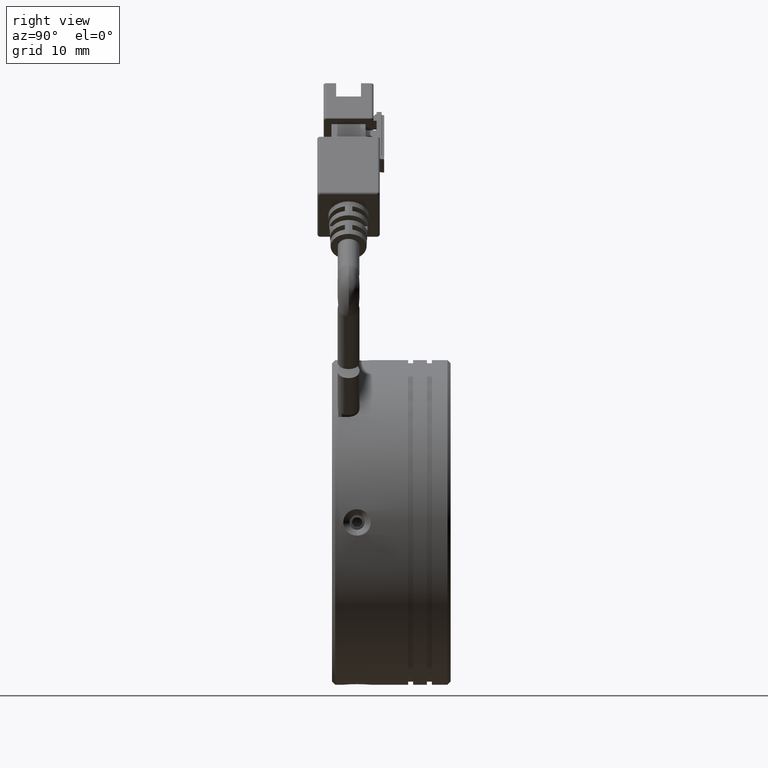
[diagram: clean part render]
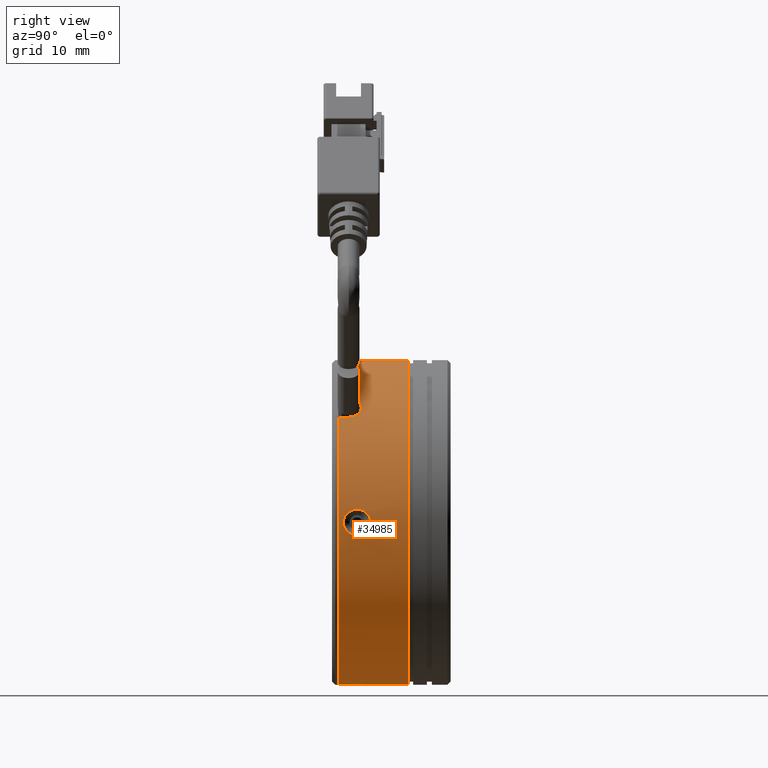
[diagram: same view with one face highlighted and labeled with its STEP entity id]
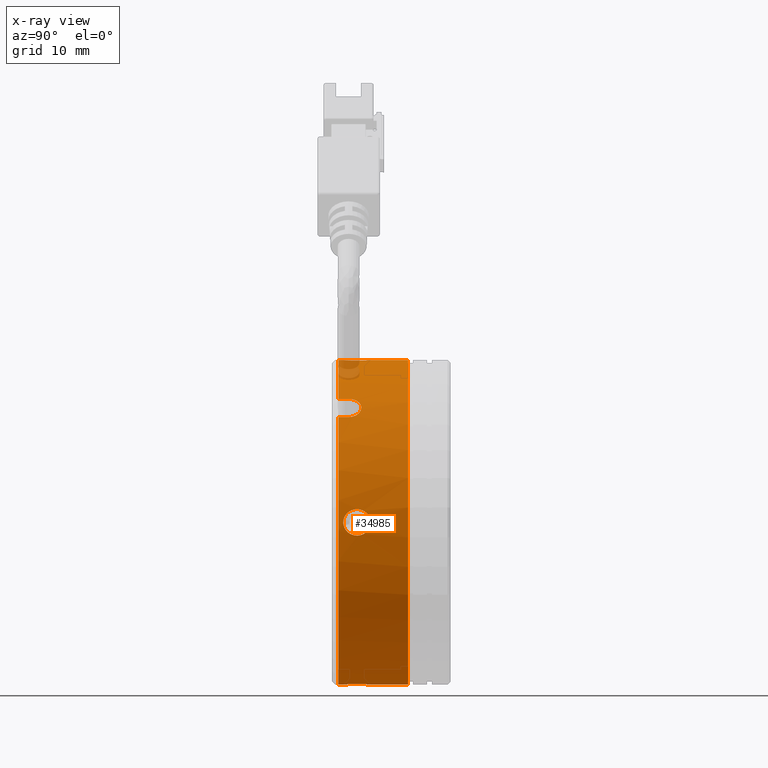
[diagram: x-ray of the same camera — body ghosted, the highlighted face saturated]
A machine part, right view. The second image highlights one B-rep face of the part: STEP entity #34985.
The next image is the same camera in x-ray: the body ghosted, the highlighted face saturated — about 2% of this face is hidden behind the body in this view.
In plain terms, the highlighted cylindrical surface (partial cylindrical patch) has radius 26 mm, axis along (-0, -1, -0).
Its self-contained STEP definition (entity closure, byte-faithful):
#128 = LINE ( 'NONE', #27088, #10145 ) ;
#192 = CARTESIAN_POINT ( 'NONE',  ( 0.4732562434826336200, -3.764367437101978600, -25.96736551312134000 ) ) ;
#267 = VECTOR ( 'NONE', #33633, 1000.000000000000000 ) ;
#311 = CARTESIAN_POINT ( 'NONE',  ( 1.063620647744090800, -1.060246755420360100, -25.93003214663569300 ) ) ;
#354 = CARTESIAN_POINT ( 'NONE',  ( -0.8432364767453733900, 0.1800761702435610400, 26.00000000000000400 ) ) ;
#514 = CARTESIAN_POINT ( 'NONE',  ( 0.2381175052354198300, -0.1075802680053533400, 25.97878341157911200 ) ) ;
#687 = ORIENTED_EDGE ( 'NONE', *, *, #48729, .T. ) ;
#771 = DIRECTION ( 'NONE',  ( -0.0000000000000000000, -1.000000000000000000, -0.0000000000000000000 ) ) ;
#916 = CARTESIAN_POINT ( 'NONE',  ( 18.94072344172944300, -3.099149559835742400, 16.86994161057548800 ) ) ;
#1060 = CARTESIAN_POINT ( 'NONE',  ( 1.270685172814881600, -2.162388447645285300, 25.91392164955974000 ) ) ;
#1152 = CARTESIAN_POINT ( 'NONE',  ( -0.8432364767453733900, 0.1800761702435610400, 26.00000000000000400 ) ) ;
#1240 = CARTESIAN_POINT ( 'NONE',  ( 0.2348341411667761400, -3.917505517468462100, 25.97789389347685000 ) ) ;
#1352 = VERTEX_POINT ( 'NONE', #21843 ) ;
#1416 = CARTESIAN_POINT ( 'NONE',  ( 25.07068517281820500, -2.019923829761831600, 2.113921649513059700 ) ) ;
#1428 = VERTEX_POINT ( 'NONE', #4494 ) ;
#1661 = CIRCLE ( 'NONE', #12132, 26.00000000000000400 ) ;
#2036 = CARTESIAN_POINT ( 'NONE',  ( 16.02670272175023300, -3.234566924000275000, 19.78396197527363800 ) ) ;
#2044 = CARTESIAN_POINT ( 'NONE',  ( 25.12411077824685900, -0.2858128282905767500, 1.307701463511026900 ) ) ;
#2056 = VERTEX_POINT ( 'NONE', #35749 ) ;
#2185 = CARTESIAN_POINT ( 'NONE',  ( 16.34851711512582600, -2.123712759211537000, 19.50510933334414800 ) ) ;
#2193 = CARTESIAN_POINT ( 'NONE',  ( 25.10731845625776200, -0.5822697731580392900, -1.605702992193580400 ) ) ;
#2570 = CARTESIAN_POINT ( 'NONE',  ( 25.08679515168393700, -2.979585503774460100, -1.906864125211564800 ) ) ;
#2720 = CARTESIAN_POINT ( 'NONE',  ( 25.14790279979053600, -4.104053108168400900, 0.6909497495157087600 ) ) ;
#2828 = AXIS2_PLACEMENT_3D ( 'NONE', #29848, #37446, #45230 ) ;
#2868 = ORIENTED_EDGE ( 'NONE', *, *, #34063, .T. ) ;
#2881 = CARTESIAN_POINT ( 'NONE',  ( 25.07068517281820500, -2.019923829761831600, 2.113921649513059700 ) ) ;
#3652 = EDGE_CURVE ( 'NONE', #6688, #30196, #18921, .T. ) ;
#3805 = CARTESIAN_POINT ( 'NONE',  ( -0.7007340623137251500, -4.219923829767420600, -26.00000000000000000 ) ) ;
#3949 = CARTESIAN_POINT ( 'NONE',  ( 0.8492483316489235500, -3.345212303749423900, -25.94496513388958200 ) ) ;
#4085 = CARTESIAN_POINT ( 'NONE',  ( 0.8508458743836855300, -0.6969658875406915500, -25.94485891572996600 ) ) ;
#4146 = CARTESIAN_POINT ( 'NONE',  ( 18.94072776834691400, -21.81214605198405500, 16.86993653659995100 ) ) ;
#4301 = CARTESIAN_POINT ( 'NONE',  ( 0.7621741821133705100, -0.5821168946738781700, 25.95056767799188800 ) ) ;
#4494 = CARTESIAN_POINT ( 'NONE',  ( 16.02670005985450900, -5.019923829761827600, 19.78396424509234900 ) ) ;
#4554 = CARTESIAN_POINT ( 'NONE',  ( 17.91300266529334800, -1.396572323487726500, 18.00612816173481100 ) ) ;
#4585 = CIRCLE ( 'NONE', #34835, 26.00000000000000400 ) ;
#4821 = DIRECTION ( 'NONE',  ( -0.0000000000000000000, -1.000000000000000000, -0.0000000000000000000 ) ) ;
#5012 = CARTESIAN_POINT ( 'NONE',  ( -0.2756764658807898700, -4.158893288112197200, 25.99507781296181400 ) ) ;
#5657 = CARTESIAN_POINT ( 'NONE',  ( 25.07068517281820500, -2.019923829761831600, 2.113921649513059700 ) ) ;
#5826 = CARTESIAN_POINT ( 'NONE',  ( 25.13959851331737700, -0.05125137742007224200, 0.9533277286991627100 ) ) ;
#5979 = CARTESIAN_POINT ( 'NONE',  ( 16.62714989401206700, -1.738342978114982200, 19.25673694829415100 ) ) ;
#5990 = CARTESIAN_POINT ( 'NONE',  ( 25.09154899582771800, -0.9315781296035328100, -1.841891277883847900 ) ) ;
#6177 = ORIENTED_EDGE ( 'NONE', *, *, #10533, .T. ) ;
#6345 = CARTESIAN_POINT ( 'NONE',  ( 25.10162151490921900, -3.342862029315775400, -1.694096393014655300 ) ) ;
#6524 = CARTESIAN_POINT ( 'NONE',  ( 25.13481377502918000, -3.919807237042732600, 1.074293932153496300 ) ) ;
#6688 = VERTEX_POINT ( 'NONE', #44478 ) ;
#6714 = B_SPLINE_CURVE_WITH_KNOTS ( 'NONE', 3,
 ( #27368, #1060, #19834, #34969, #12464, #38780, #16211, #42638, #20011, #46384, #23746, #1240, #27524, #5012, #31341, #8799 ),
 .UNSPECIFIED., .F., .F.,
 ( 4, 2, 2, 2, 2, 2, 2, 4 ),
 ( -0.003378561100889136900, -0.002956240963277981900, -0.002533920825666826800, -0.002111600688055672300, -0.001689280550444517300, -0.001266960412833362200, -0.0008446402752222072400, 1.040834085586084300E-016 ),
 .UNSPECIFIED. ) ;
#6738 = VERTEX_POINT ( 'NONE', #33378 ) ;
#6997 = VERTEX_POINT ( 'NONE', #1416 ) ;
#7209 = B_SPLINE_CURVE_WITH_KNOTS ( 'NONE', 3,
 ( #28160, #2036, #17207, #43585, #20951, #47356, #24712, #2185, #28496, #5979, #32286, #9766, #36108, #13576 ),
 .UNSPECIFIED., .F., .F.,
 ( 4, 2, 2, 2, 2, 2, 4 ),
 ( 4.336808689942017700E-019, 0.0004003099695699259200, 0.0008006199391398514200, 0.001200929908709776800, 0.001601239878279702400, 0.002401859817419554000, 0.003202479756559405700 ),
 .UNSPECIFIED. ) ;
#7304 = VECTOR ( 'NONE', #45544, 1000.000000000000000 ) ;
#7758 = CARTESIAN_POINT ( 'NONE',  ( 1.063312703427903700, -2.980120379278099500, -25.93005427361827800 ) ) ;
#7870 = CARTESIAN_POINT ( 'NONE',  ( 0.5700417114844571500, -0.3780923828192620000, -25.96174129452805300 ) ) ;
#8078 = CARTESIAN_POINT ( 'NONE',  ( 1.000167844944690700, -0.9342284771793206700, 25.93467912144212000 ) ) ;
#8341 = CARTESIAN_POINT ( 'NONE',  ( 18.17349000561377500, -1.536640124356303000, 17.73075292991632800 ) ) ;
#8585 = CARTESIAN_POINT ( 'NONE',  ( -0.8432364767453733900, -21.81214605198405500, 26.00000000000000400 ) ) ;
#8799 = CARTESIAN_POINT ( 'NONE',  ( -0.8432364767453733900, -4.219923829767225200, 26.00000000000000400 ) ) ;
#9481 = EDGE_CURVE ( 'NONE', #23218, #35624, #1661, .T. ) ;
#9559 = EDGE_CURVE ( 'NONE', #6738, #1428, #4585, .T. ) ;
#9605 = CARTESIAN_POINT ( 'NONE',  ( 25.15673264790216700, 0.1796804039530937000, 0.2839379019657914900 ) ) ;
#9766 = CARTESIAN_POINT ( 'NONE',  ( 17.15681943959830500, -1.385776986722936400, 18.76323631182730300 ) ) ;
#9777 = CARTESIAN_POINT ( 'NONE',  ( 25.07905077566601200, -1.322527728961460300, -2.009400288204657300 ) ) ;
#10051 = CARTESIAN_POINT ( 'NONE',  ( 16.02670005985450900, -3.369923829761832600, 19.78396424509234600 ) ) ;
#10145 = VECTOR ( 'NONE', #771, 1000.000000000000000 ) ;
#10170 = CARTESIAN_POINT ( 'NONE',  ( 25.11850356548055500, -3.661733805605004400, -1.413300993736706000 ) ) ;
#10328 = CARTESIAN_POINT ( 'NONE',  ( 25.11867407071949300, -3.664708869090561800, 1.410242587424407100 ) ) ;
#10533 = EDGE_CURVE ( 'NONE', #20010, #6738, #30221, .T. ) ;
#10766 = VERTEX_POINT ( 'NONE', #21605 ) ;
#11352 = DIRECTION ( 'NONE',  ( 0.0000000000000000000, 1.000000000000000000, 0.0000000000000000000 ) ) ;
#11509 = LINE ( 'NONE', #29821, #267 ) ;
#11577 = CARTESIAN_POINT ( 'NONE',  ( 1.205355855722643100, -2.580402335998146100, -25.91918119726959100 ) ) ;
#11705 = CARTESIAN_POINT ( 'NONE',  ( 0.2348341411669275800, -0.1223421420549828000, -25.97789389347683900 ) ) ;
#11925 = CARTESIAN_POINT ( 'NONE',  ( 1.165868342122063500, -1.321731564562086600, 25.92230973960485600 ) ) ;
#12132 = AXIS2_PLACEMENT_3D ( 'NONE', #33825, #11352, #37642 ) ;
#12141 = CARTESIAN_POINT ( 'NONE',  ( 18.40497477395977900, -1.745375409736210900, 17.47909849503531300 ) ) ;
#12464 = CARTESIAN_POINT ( 'NONE',  ( 1.166694670216930700, -2.715734830182291200, 25.92224619903235100 ) ) ;
#12484 = VERTEX_POINT ( 'NONE', #39093 ) ;
#12816 = EDGE_CURVE ( 'NONE', #12484, #10766, #21873, .T. ) ;
#12933 = CARTESIAN_POINT ( 'NONE',  ( 25.07068517281199500, -1.877461657298543600, 2.113921649515466700 ) ) ;
#13254 = CARTESIAN_POINT ( 'NONE',  ( 25.07591407511031200, -1.461164601604376400, 2.048977449278429000 ) ) ;
#13305 = ORIENTED_EDGE ( 'NONE', *, *, #12816, .T. ) ;
#13418 = CARTESIAN_POINT ( 'NONE',  ( 25.15562427119898100, 0.1656171014092065500, -0.2800583880823526200 ) ) ;
#13576 = CARTESIAN_POINT ( 'NONE',  ( 17.54153983410482800, -1.332328671300404800, 18.38477631085026000 ) ) ;
#13583 = CARTESIAN_POINT ( 'NONE',  ( 25.07179279545793400, -1.734811959608368900, -2.100463543675002300 ) ) ;
#13915 = ORIENTED_EDGE ( 'NONE', *, *, #42421, .T. ) ;
#13939 = CARTESIAN_POINT ( 'NONE',  ( 25.13465602632342700, -3.917484905529514000, -1.078103741771826200 ) ) ;
#14037 = EDGE_LOOP ( 'NONE', ( #687, #13915 ) ) ;
#14111 = CARTESIAN_POINT ( 'NONE',  ( 25.10177477621473900, -3.346110857412303300, 1.691760051457251900 ) ) ;
#14403 = CARTESIAN_POINT ( 'NONE',  ( -0.8432364767453765000, -21.81214605198405500, -26.00000000000000400 ) ) ;
#14978 = ORIENTED_EDGE ( 'NONE', *, *, #19717, .T. ) ;
#15080 = B_SPLINE_CURVE_WITH_KNOTS ( 'NONE', 3,
 ( #5657, #12933, #35772, #13254, #39623, #17037, #43416, #20801, #47196, #24542, #2044, #28347, #5826, #32132, #9605, #35948, #13418, #39772, #17220, #43593, #20957, #47364, #24723, #2193, #28499, #5990, #32297, #9777, #36113, #13583, #39929, #17381 ),
 .UNSPECIFIED., .F., .F.,
 ( 4, 2, 2, 2, 2, 2, 2, 2, 2, 2, 2, 2, 2, 2, 2, 4 ),
 ( 2.583180333587379100E-015, 0.0004213273515320680400, 0.0008426547030615529600, 0.001263982054591037900, 0.001685309406120522700, 0.002106636757650007200, 0.002527964109179492400, 0.003370618812238462000, 0.003791946163767946700, 0.004213273515297431500, 0.004634600866826916700, 0.005055928218356401900, 0.005477255569885886200, 0.005898582921415371400, 0.006319910272944855700, 0.006741237624474340900 ),
 .UNSPECIFIED. ) ;
#15328 = CARTESIAN_POINT ( 'NONE',  ( 1.270685172815048800, -2.162275743551041400, -25.91392164955971800 ) ) ;
#15459 = CARTESIAN_POINT ( 'NONE',  ( -0.2756764658806839000, 0.1190456285887361400, -25.99507781296181400 ) ) ;
#15644 = CARTESIAN_POINT ( 'NONE',  ( 1.257514202096895900, -1.737020457321812000, 25.91500590520644200 ) ) ;
#15701 = DIRECTION ( 'NONE',  ( 0.0000000000000000000, 1.000000000000000000, 0.0000000000000000000 ) ) ;
#15712 = EDGE_CURVE ( 'NONE', #12484, #35624, #39286, .T. ) ;
#15748 = CARTESIAN_POINT ( 'NONE',  ( 17.54153983410482800, -1.332328671300404800, 18.38477631085026000 ) ) ;
#15907 = ORIENTED_EDGE ( 'NONE', *, *, #9481, .T. ) ;
#15922 = CARTESIAN_POINT ( 'NONE',  ( 18.60346495581549300, -2.018245760449369500, 17.25789427479638100 ) ) ;
#16211 = CARTESIAN_POINT ( 'NONE',  ( 1.000420750988469900, -3.105009465236219200, 25.93465918797013700 ) ) ;
#16466 = EDGE_CURVE ( 'NONE', #10766, #1352, #34708, .T. ) ;
#16544 = EDGE_CURVE ( 'NONE', #6688, #1352, #128, .T. ) ;
#17003 = DIRECTION ( 'NONE',  ( 0.0000000000000000000, 0.0000000000000000000, -1.000000000000000000 ) ) ;
#17009 = EDGE_CURVE ( 'NONE', #47948, #20010, #6714, .T. ) ;
#17037 = CARTESIAN_POINT ( 'NONE',  ( 25.08679515168391600, -1.060262155748592700, 1.906864125211825700 ) ) ;
#17184 = DIRECTION ( 'NONE',  ( -0.0000000000000000000, -1.000000000000000000, -0.0000000000000000000 ) ) ;
#17207 = CARTESIAN_POINT ( 'NONE',  ( 16.03701491091293000, -3.101515728352455700, 19.77518182789524200 ) ) ;
#17220 = CARTESIAN_POINT ( 'NONE',  ( 25.14790279979051500, 0.06420544864425294100, -0.6909497495165105600 ) ) ;
#17347 = CARTESIAN_POINT ( 'NONE',  ( -0.8432364767453765000, 6.180076170238170800, 0.0000000000000000000 ) ) ;
#17381 = CARTESIAN_POINT ( 'NONE',  ( 25.07068517281824800, -2.019923829761832000, -2.113921649512511300 ) ) ;
#17577 = CARTESIAN_POINT ( 'NONE',  ( 25.07068517281841500, -2.162386002227341600, -2.113921649512678700 ) ) ;
#17722 = ORIENTED_EDGE ( 'NONE', *, *, #21416, .T. ) ;
#17756 = CARTESIAN_POINT ( 'NONE',  ( 25.15184026195136700, -4.158879317824578900, -0.5676062594884399000 ) ) ;
#17906 = CARTESIAN_POINT ( 'NONE',  ( 25.08682708409655500, -2.980469916977110500, 1.906428505206584600 ) ) ;
#18176 = DIRECTION ( 'NONE',  ( -0.0000000000000000000, -1.000000000000000000, -0.0000000000000000000 ) ) ;
#18921 = CIRCLE ( 'NONE', #25167, 26.00000000000000400 ) ;
#18970 = CARTESIAN_POINT ( 'NONE',  ( -0.2851902432069565700, -4.146818997786145800, -25.99437556230126500 ) ) ;
#19090 = CARTESIAN_POINT ( 'NONE',  ( 1.257494776039186600, -1.737247219865599500, -25.91500727700112000 ) ) ;
#19240 = CARTESIAN_POINT ( 'NONE',  ( -0.8432364767453807100, 0.1800761702437439500, -26.00000000000000400 ) ) ;
#19295 = CARTESIAN_POINT ( 'NONE',  ( -0.5606644785951457900, 0.1652119300586016600, 25.99882938785115300 ) ) ;
#19455 = CARTESIAN_POINT ( 'NONE',  ( 1.270685172814882200, -2.019923829761832000, 25.91392164955973200 ) ) ;
#19698 = CARTESIAN_POINT ( 'NONE',  ( 18.76019152623937800, -2.342651397870176400, 17.07955972849781300 ) ) ;
#19717 = EDGE_CURVE ( 'NONE', #1428, #32625, #11509, .T. ) ;
#19762 = EDGE_CURVE ( 'NONE', #2056, #23218, #47411, .T. ) ;
#19834 = CARTESIAN_POINT ( 'NONE',  ( 1.257494776038846400, -2.302600439658064600, 25.91500727700114100 ) ) ;
#20010 = VERTEX_POINT ( 'NONE', #43276 ) ;
#20011 = CARTESIAN_POINT ( 'NONE',  ( 0.7632741512652819700, -3.456453484696639000, 25.95050076363496000 ) ) ;
#20228 = VECTOR ( 'NONE', #4821, 1000.000000000000000 ) ;
#20674 = ORIENTED_EDGE ( 'NONE', *, *, #19762, .T. ) ;
#20801 = CARTESIAN_POINT ( 'NONE',  ( 25.10162151490921200, -0.6969856302072465800, 1.694096393014742400 ) ) ;
#20951 = CARTESIAN_POINT ( 'NONE',  ( 16.10782138529539200, -2.709812296531998000, 19.71457240543172100 ) ) ;
#20957 = CARTESIAN_POINT ( 'NONE',  ( 25.13481377502914800, -0.1200404224817431400, -1.074293932154277000 ) ) ;
#21294 = EDGE_LOOP ( 'NONE', ( #48203, #17722, #2868, #40878, #6177, #26213, #14978, #32819, #32721, #20674, #15907, #46663, #13305, #23310, #36597 ) ) ;
#21357 = CARTESIAN_POINT ( 'NONE',  ( 25.07177076299983700, -2.302595625451821200, -2.100731701423661500 ) ) ;
#21416 = EDGE_CURVE ( 'NONE', #30196, #48022, #38378, .T. ) ;
#21507 = CARTESIAN_POINT ( 'NONE',  ( 25.15677872803126300, -4.220118727477475000, 0.1377067721046466300 ) ) ;
#21605 = CARTESIAN_POINT ( 'NONE',  ( 1.270685172815217500, -2.019923829761831600, -25.91392164955970400 ) ) ;
#21669 = CARTESIAN_POINT ( 'NONE',  ( 25.07598192525610900, -2.582211107856319000, 2.048122727477555700 ) ) ;
#21843 = CARTESIAN_POINT ( 'NONE',  ( -0.8432364767453807100, 0.1800761702437439500, -26.00000000000000400 ) ) ;
#21873 = B_SPLINE_CURVE_WITH_KNOTS ( 'NONE', 3,
 ( #30132, #3805, #41570, #18970, #45342, #22721, #192, #26483, #3949, #30281, #7758, #34072, #11577, #37895, #15328, #41711 ),
 .UNSPECIFIED., .F., .F.,
 ( 4, 2, 2, 2, 2, 2, 2, 4 ),
 ( 0.006753514958620414300, 0.007175384245134964300, 0.007597253531649515200, 0.008440992104678616100, 0.008862861391193166100, 0.009284730677707716100, 0.009706599964222266000, 0.01012846925073681600 ),
 .UNSPECIFIED. ) ;
#22119 = B_SPLINE_CURVE_WITH_KNOTS ( 'NONE', 3,
 ( #15748, #42145, #27077, #4554, #30871, #8341, #34669, #12141, #38470, #15922, #42318, #19698, #46108, #23451, #916, #27244 ),
 .UNSPECIFIED., .F., .F.,
 ( 4, 2, 2, 2, 2, 2, 2, 4 ),
 ( 0.0000000000000000000, 0.0004002738731357412100, 0.0008005477462714824100, 0.001200821619407223600, 0.001601095492542964800, 0.002001369365678705900, 0.002401643238814447100, 0.003202190985085926600 ),
 .UNSPECIFIED. ) ;
#22721 = CARTESIAN_POINT ( 'NONE',  ( 0.2381175052355625800, -3.932267391518537100, -25.97878341157910900 ) ) ;
#22848 = CARTESIAN_POINT ( 'NONE',  ( 1.166694670217238700, -1.324112829341269400, -25.92224619903233300 ) ) ;
#23062 = CARTESIAN_POINT ( 'NONE',  ( -0.1485429309997573800, 0.06283105692110259300, 25.99103748164975500 ) ) ;
#23218 = VERTEX_POINT ( 'NONE', #38934 ) ;
#23310 = ORIENTED_EDGE ( 'NONE', *, *, #16466, .T. ) ;
#23451 = CARTESIAN_POINT ( 'NONE',  ( 18.90476971852949700, -2.830303678248056600, 16.91233520536058800 ) ) ;
#23746 = CARTESIAN_POINT ( 'NONE',  ( 0.4644389933506099500, -3.754056304108383600, 25.96734857976179000 ) ) ;
#24250 = CARTESIAN_POINT ( 'NONE',  ( -0.8432364767453733900, -21.81214605198405500, 26.00000000000000400 ) ) ;
#24542 = CARTESIAN_POINT ( 'NONE',  ( 25.11850356548056600, -0.3781138539180618500, 1.413300993736613700 ) ) ;
#24712 = CARTESIAN_POINT ( 'NONE',  ( 16.23513418220293800, -2.345393135373116800, 19.60446217841485600 ) ) ;
#24723 = CARTESIAN_POINT ( 'NONE',  ( 25.11867407071945000, -0.3751387904342835500, -1.410242587425131200 ) ) ;
#25088 = CARTESIAN_POINT ( 'NONE',  ( 25.07900943862742700, -2.715723054750402100, -2.009934761702721700 ) ) ;
#25167 = AXIS2_PLACEMENT_3D ( 'NONE', #17347, #17184, #17003 ) ;
#25260 = CARTESIAN_POINT ( 'NONE',  ( 25.15116355975102300, -4.147143884093919700, 0.5570993038342602100 ) ) ;
#25423 = CARTESIAN_POINT ( 'NONE',  ( 25.07068517281202700, -2.162364752792359700, 2.113921649515198500 ) ) ;
#26213 = ORIENTED_EDGE ( 'NONE', *, *, #9559, .T. ) ;
#26444 = CARTESIAN_POINT ( 'NONE',  ( 1.270685172815217500, -2.019923829761831600, -25.91392164955970400 ) ) ;
#26483 = CARTESIAN_POINT ( 'NONE',  ( 0.7621741821135980000, -3.457730764849984000, -25.95056767799187400 ) ) ;
#26618 = CARTESIAN_POINT ( 'NONE',  ( 1.000420750988773900, -0.9348381942873361700, -25.93465918797012300 ) ) ;
#26808 = CARTESIAN_POINT ( 'NONE',  ( 0.4732562434824554300, -0.2754802224219065100, 25.96736551312135400 ) ) ;
#27077 = CARTESIAN_POINT ( 'NONE',  ( 17.73062396221211000, -1.345387136655783200, 18.19419870519981700 ) ) ;
#27088 = CARTESIAN_POINT ( 'NONE',  ( -0.8432364767453765000, -21.81214605198405500, -26.00000000000000400 ) ) ;
#27244 = CARTESIAN_POINT ( 'NONE',  ( 18.94072776834691800, -3.369923829761829000, 16.86993653659994800 ) ) ;
#27368 = CARTESIAN_POINT ( 'NONE',  ( 1.270685172814882200, -2.019923829761832000, 25.91392164955973200 ) ) ;
#27524 = CARTESIAN_POINT ( 'NONE',  ( 0.1100547866129728300, -3.988615603126993000, 25.98283634409786600 ) ) ;
#28160 = CARTESIAN_POINT ( 'NONE',  ( 16.02670005985450900, -3.369923829761832600, 19.78396424509234600 ) ) ;
#28337 = VECTOR ( 'NONE', #47061, 1000.000000000000000 ) ;
#28347 = CARTESIAN_POINT ( 'NONE',  ( 25.13465602632345900, -0.1223627539936126600, 1.078103741771508500 ) ) ;
#28496 = CARTESIAN_POINT ( 'NONE',  ( 16.41403408037746900, -2.019193144098852400, 19.44725410895062400 ) ) ;
#28499 = CARTESIAN_POINT ( 'NONE',  ( 25.10177477621470400, -0.6937368021127755500, -1.691760051457732700 ) ) ;
#28525 = FACE_BOUND ( 'NONE', #14037, .T. ) ;
#28891 = CARTESIAN_POINT ( 'NONE',  ( 25.09142205960208800, -3.104992459892392800, -1.843666292746150200 ) ) ;
#29044 = CARTESIAN_POINT ( 'NONE',  ( 25.13974116819227300, -3.990634697259623800, 0.9495289102042204800 ) ) ;
#29228 = VECTOR ( 'NONE', #18176, 1000.000000000000000 ) ;
#29342 = B_SPLINE_CURVE_WITH_KNOTS ( 'NONE', 3,
 ( #354, #41731, #19295, #45686, #23062, #514, #26808, #4301, #30633, #8078, #34414, #11925, #38217, #15644, #42061, #19455 ),
 .UNSPECIFIED., .F., .F.,
 ( 4, 2, 2, 2, 2, 2, 2, 4 ),
 ( 0.006753514958620318100, 0.007175384245134818600, 0.007597253531649319200, 0.008440992104678319400, 0.008862861391192820800, 0.009284730677707318800, 0.009706599964221820200, 0.01012846925073632000 ),
 .UNSPECIFIED. ) ;
#29821 = CARTESIAN_POINT ( 'NONE',  ( 16.02670005985450900, -21.81214605198405500, 19.78396424509234900 ) ) ;
#29848 = CARTESIAN_POINT ( 'NONE',  ( -0.8432364767453765000, -21.81214605198405500, 0.0000000000000000000 ) ) ;
#29969 = CARTESIAN_POINT ( 'NONE',  ( 1.270685172814882200, -2.019923829761832000, 25.91392164955973200 ) ) ;
#30132 = CARTESIAN_POINT ( 'NONE',  ( -0.8432364767453765000, -4.219923829767406400, -26.00000000000000400 ) ) ;
#30196 = VERTEX_POINT ( 'NONE', #46038 ) ;
#30221 = LINE ( 'NONE', #8585, #20228 ) ;
#30281 = CARTESIAN_POINT ( 'NONE',  ( 1.000167844944962900, -3.105619182344511400, -25.93467912144210500 ) ) ;
#30400 = CARTESIAN_POINT ( 'NONE',  ( 0.7632741512655253400, -0.5833941748268457500, -25.95050076363494900 ) ) ;
#30633 = CARTESIAN_POINT ( 'NONE',  ( 0.8492483316486786300, -0.6946353557744289200, 25.94496513388960000 ) ) ;
#30871 = CARTESIAN_POINT ( 'NONE',  ( 18.00289704761946300, -1.435286312553803100, 17.91197188330776100 ) ) ;
#31341 = CARTESIAN_POINT ( 'NONE',  ( -0.5579665352354457000, -4.219923829767207500, 26.00000000000001400 ) ) ;
#32132 = CARTESIAN_POINT ( 'NONE',  ( 25.15184026195138100, 0.1190316583012300300, 0.5676062594879195400 ) ) ;
#32286 = CARTESIAN_POINT ( 'NONE',  ( 16.79697982537316700, -1.587522834681696700, 19.10193232894109300 ) ) ;
#32297 = CARTESIAN_POINT ( 'NONE',  ( 25.08682708409653700, -1.059377742548280000, -1.906428505206841000 ) ) ;
#32625 = VERTEX_POINT ( 'NONE', #10051 ) ;
#32652 = CARTESIAN_POINT ( 'NONE',  ( 25.10726322386177500, -3.456432667194466300, -1.606527624350964500 ) ) ;
#32721 = ORIENTED_EDGE ( 'NONE', *, *, #48462, .T. ) ;
#32817 = CARTESIAN_POINT ( 'NONE',  ( 25.12430405033785200, -3.757149244191791700, 1.303856322865365900 ) ) ;
#32819 = ORIENTED_EDGE ( 'NONE', *, *, #40731, .T. ) ;
#33378 = CARTESIAN_POINT ( 'NONE',  ( -0.8432364767453733900, -5.019923829761831200, 26.00000000000000400 ) ) ;
#33633 = DIRECTION ( 'NONE',  ( 0.0000000000000000000, 1.000000000000000000, 0.0000000000000000000 ) ) ;
#33825 = CARTESIAN_POINT ( 'NONE',  ( -0.8432364767453765000, -5.019923829761831200, 0.0000000000000000000 ) ) ;
#33852 = CYLINDRICAL_SURFACE ( 'NONE', #2828, 26.00000000000000400 ) ;
#34063 = EDGE_CURVE ( 'NONE', #48022, #47948, #29342, .T. ) ;
#34072 = CARTESIAN_POINT ( 'NONE',  ( 1.165868342122369000, -2.718116094961707100, -25.92230973960483100 ) ) ;
#34209 = CARTESIAN_POINT ( 'NONE',  ( 0.4644389933508281100, -0.2857913554150947600, -25.96734857976177200 ) ) ;
#34414 = CARTESIAN_POINT ( 'NONE',  ( 1.063312703427619300, -1.059727280245722300, 25.93005427361830300 ) ) ;
#34669 = CARTESIAN_POINT ( 'NONE',  ( 18.25381622242281000, -1.598695234550849800, 17.64412363241969200 ) ) ;
#34708 = B_SPLINE_CURVE_WITH_KNOTS ( 'NONE', 3,
 ( #26444, #37869, #19090, #45485, #22848, #311, #26618, #4085, #30400, #7870, #34209, #11705, #38005, #15459, #41847, #19240 ),
 .UNSPECIFIED., .F., .F.,
 ( 4, 2, 2, 2, 2, 2, 2, 4 ),
 ( 0.01012846925073681600, 0.01055067254327701600, 0.01097287583581721600, 0.01139507912835741600, 0.01181728242089761400, 0.01223948571343781400, 0.01266168900597801400, 0.01350609559105841300 ),
 .UNSPECIFIED. ) ;
#34835 = AXIS2_PLACEMENT_3D ( 'NONE', #38268, #15701, #42107 ) ;
#34969 = CARTESIAN_POINT ( 'NONE',  ( 1.205738756101919100, -2.578692461151305300, 25.91915072795836000 ) ) ;
#34985 = ADVANCED_FACE ( 'NONE', ( #28525, #38570 ), #33852, .T. ) ;
#35624 = VERTEX_POINT ( 'NONE', #38352 ) ;
#35749 = CARTESIAN_POINT ( 'NONE',  ( 18.94072776834691800, -3.369923829761829000, 16.86993653659994800 ) ) ;
#35772 = CARTESIAN_POINT ( 'NONE',  ( 25.07177076299978700, -1.737252034071502100, 2.100731701424169100 ) ) ;
#35948 = CARTESIAN_POINT ( 'NONE',  ( 25.15677872803124900, 0.1802710679537243800, -0.1377067721053990300 ) ) ;
#36108 = CARTESIAN_POINT ( 'NONE',  ( 17.35017317992077300, -1.332335679312229200, 18.57614296503430800 ) ) ;
#36113 = CARTESIAN_POINT ( 'NONE',  ( 25.07598192525611200, -1.457636551669238200, -2.048122727477491800 ) ) ;
#36486 = CARTESIAN_POINT ( 'NONE',  ( 25.12411077824684800, -3.754034831232509400, -1.307701463511183000 ) ) ;
#36597 = ORIENTED_EDGE ( 'NONE', *, *, #16544, .F. ) ;
#36647 = CARTESIAN_POINT ( 'NONE',  ( 25.10731845625780100, -3.457577886366958200, 1.605702992193027000 ) ) ;
#37446 = DIRECTION ( 'NONE',  ( -0.0000000000000000000, -1.000000000000000000, -0.0000000000000000000 ) ) ;
#37642 = DIRECTION ( 'NONE',  ( 0.0000000000000000000, 0.0000000000000000000, -1.000000000000000000 ) ) ;
#37869 = CARTESIAN_POINT ( 'NONE',  ( 1.270685172815382700, -1.877459211881043600, -25.91392164955969000 ) ) ;
#37895 = CARTESIAN_POINT ( 'NONE',  ( 1.257514202097226100, -2.302827202201920300, -25.91500590520640700 ) ) ;
#38005 = CARTESIAN_POINT ( 'NONE',  ( 0.1100547866131151900, -0.05123205639646109100, -25.98283634409786200 ) ) ;
#38217 = CARTESIAN_POINT ( 'NONE',  ( 1.205355855722327200, -1.459445323525628400, 25.91918119726961200 ) ) ;
#38268 = CARTESIAN_POINT ( 'NONE',  ( -0.8432364767453765000, -5.019923829761831200, 0.0000000000000000000 ) ) ;
#38352 = CARTESIAN_POINT ( 'NONE',  ( -0.8432364767453765000, -5.019923829761831200, -26.00000000000000400 ) ) ;
#38378 = LINE ( 'NONE', #24250, #28337 ) ;
#38470 = CARTESIAN_POINT ( 'NONE',  ( 18.47622477903727800, -1.830941942694295000, 17.40021632605548500 ) ) ;
#38548 = VERTEX_POINT ( 'NONE', #47027 ) ;
#38570 = FACE_OUTER_BOUND ( 'NONE', #21294, .T. ) ;
#38780 = CARTESIAN_POINT ( 'NONE',  ( 1.063620647743784400, -2.979600904103209700, 25.93003214663571800 ) ) ;
#38934 = CARTESIAN_POINT ( 'NONE',  ( 18.94072776834691400, -5.019923829761827600, 16.86993653659994800 ) ) ;
#39093 = CARTESIAN_POINT ( 'NONE',  ( -0.8432364767453765000, -4.219923829767406400, -26.00000000000000400 ) ) ;
#39286 = LINE ( 'NONE', #14403, #29228 ) ;
#39623 = CARTESIAN_POINT ( 'NONE',  ( 25.07900943862740200, -1.324124604772642300, 2.009934761703067600 ) ) ;
#39772 = CARTESIAN_POINT ( 'NONE',  ( 25.15116355975101200, 0.1072962245698728000, -0.5570993038350605700 ) ) ;
#39929 = CARTESIAN_POINT ( 'NONE',  ( 25.07068517281840800, -1.877440404689787900, -2.113921649512712000 ) ) ;
#40322 = CARTESIAN_POINT ( 'NONE',  ( 25.13959851331736300, -3.988596282103108700, -0.9533277286995313100 ) ) ;
#40487 = CARTESIAN_POINT ( 'NONE',  ( 25.09154899582774700, -3.108269529921738900, 1.841891277883513700 ) ) ;
#40731 = EDGE_CURVE ( 'NONE', #32625, #38548, #7209, .T. ) ;
#40878 = ORIENTED_EDGE ( 'NONE', *, *, #17009, .T. ) ;
#41492 = CARTESIAN_POINT ( 'NONE',  ( 25.07068517281824800, -2.019923829761832000, -2.113921649512511300 ) ) ;
#41570 = CARTESIAN_POINT ( 'NONE',  ( -0.5606644785951154800, -4.205059589582468500, -25.99882938785115300 ) ) ;
#41711 = CARTESIAN_POINT ( 'NONE',  ( 1.270685172815217500, -2.019923829761831600, -25.91392164955970400 ) ) ;
#41731 = CARTESIAN_POINT ( 'NONE',  ( -0.7007340623137375800, 0.1800761702435598200, 26.00000000000000000 ) ) ;
#41847 = CARTESIAN_POINT ( 'NONE',  ( -0.5580454620580992400, 0.1800761702437680700, -26.00000000000000400 ) ) ;
#42061 = CARTESIAN_POINT ( 'NONE',  ( 1.270685172814881600, -1.877611301072066100, 25.91392164955973600 ) ) ;
#42107 = DIRECTION ( 'NONE',  ( 0.0000000000000000000, 0.0000000000000000000, -1.000000000000000000 ) ) ;
#42145 = CARTESIAN_POINT ( 'NONE',  ( 17.63724383699600300, -1.332332311667882500, 18.28907230795908800 ) ) ;
#42318 = CARTESIAN_POINT ( 'NONE',  ( 18.66023424566026300, -2.120503347189903300, 17.19361450561798700 ) ) ;
#42421 = EDGE_CURVE ( 'NONE', #6997, #45261, #15080, .T. ) ;
#42638 = CARTESIAN_POINT ( 'NONE',  ( 0.8508458743834159700, -3.342881771982819200, 25.94485891572998800 ) ) ;
#43276 = CARTESIAN_POINT ( 'NONE',  ( -0.8432364767453733900, -4.219923829767225200, 26.00000000000000400 ) ) ;
#43416 = CARTESIAN_POINT ( 'NONE',  ( 25.09142205960207100, -0.9348551996306534400, 1.843666292746363600 ) ) ;
#43585 = CARTESIAN_POINT ( 'NONE',  ( 16.07731900997010000, -2.839832261796470200, 19.74070680745349500 ) ) ;
#43593 = CARTESIAN_POINT ( 'NONE',  ( 25.13974116819224500, -0.04921296226475328100, -0.9495289102050434900 ) ) ;
#43959 = CARTESIAN_POINT ( 'NONE',  ( 25.07068517281824800, -2.019923829761832000, -2.113921649512511300 ) ) ;
#44110 = CARTESIAN_POINT ( 'NONE',  ( 25.15673264790216400, -4.219528063476581700, -0.2839379019664302100 ) ) ;
#44274 = CARTESIAN_POINT ( 'NONE',  ( 25.07905077566601200, -2.717319930564032800, 2.009400288204616900 ) ) ;
#44478 = CARTESIAN_POINT ( 'NONE',  ( -0.8432364767453765000, 6.180076170238170800, -26.00000000000000400 ) ) ;
#45230 = DIRECTION ( 'NONE',  ( 0.0000000000000000000, 0.0000000000000000000, -1.000000000000000000 ) ) ;
#45261 = VERTEX_POINT ( 'NONE', #41492 ) ;
#45342 = CARTESIAN_POINT ( 'NONE',  ( -0.1485429309996705300, -4.102678716444987800, -25.99103748164974800 ) ) ;
#45485 = CARTESIAN_POINT ( 'NONE',  ( 1.205738756102252800, -1.461155198372313000, -25.91915072795833600 ) ) ;
#45544 = DIRECTION ( 'NONE',  ( -0.0000000000000000000, -1.000000000000000000, -0.0000000000000000000 ) ) ;
#45686 = CARTESIAN_POINT ( 'NONE',  ( -0.2851902432070234100, 0.1069713382622635700, 25.99437556230125400 ) ) ;
#45740 = B_SPLINE_CURVE_WITH_KNOTS ( 'NONE', 3,
 ( #43959, #17577, #21357, #47723, #25088, #2570, #28891, #6345, #32652, #10170, #36486, #13939, #40322, #17756, #44110, #21507, #47892, #25260, #2720, #29044, #6524, #32817, #10328, #36647, #14111, #40487, #17906, #44274, #21669, #48054, #25423, #2881 ),
 .UNSPECIFIED., .F., .F.,
 ( 4, 2, 2, 2, 2, 2, 2, 2, 2, 2, 2, 2, 2, 2, 2, 4 ),
 ( 0.006741237624474340900, 0.007162502131468436200, 0.007583766638462531600, 0.008005031145456626900, 0.008426295652450722200, 0.008847560159444817600, 0.009268824666438912900, 0.01011135368042710200, 0.01053261818742119700, 0.01095388269441529200, 0.01137514720140938800, 0.01179641170840348300, 0.01221767621539757800, 0.01263894072239167600, 0.01306020522938577100, 0.01348146973637986600 ),
 .UNSPECIFIED. ) ;
#46038 = CARTESIAN_POINT ( 'NONE',  ( -0.8432364767453733900, 6.180076170238170800, 26.00000000000000400 ) ) ;
#46108 = CARTESIAN_POINT ( 'NONE',  ( 18.80275340027496600, -2.461720809362805800, 17.03049586620390000 ) ) ;
#46384 = CARTESIAN_POINT ( 'NONE',  ( 0.5700417114842225600, -3.661755276704226100, 25.96174129452807500 ) ) ;
#46663 = ORIENTED_EDGE ( 'NONE', *, *, #15712, .F. ) ;
#47027 = CARTESIAN_POINT ( 'NONE',  ( 17.54153983410482800, -1.332328671300404800, 18.38477631085026000 ) ) ;
#47061 = DIRECTION ( 'NONE',  ( -0.0000000000000000000, -1.000000000000000000, -0.0000000000000000000 ) ) ;
#47196 = CARTESIAN_POINT ( 'NONE',  ( 25.10726322386177900, -0.5834149923285459900, 1.606527624350974100 ) ) ;
#47356 = CARTESIAN_POINT ( 'NONE',  ( 16.18688842422260500, -2.462584212436573300, 19.64631195997596100 ) ) ;
#47364 = CARTESIAN_POINT ( 'NONE',  ( 25.12430405033780500, -0.2826984153328857600, -1.303856322866068700 ) ) ;
#47411 = LINE ( 'NONE', #4146, #7304 ) ;
#47723 = CARTESIAN_POINT ( 'NONE',  ( 25.07591407511034000, -2.578683057918745600, -2.048977449278014600 ) ) ;
#47892 = CARTESIAN_POINT ( 'NONE',  ( 25.15562427119899200, -4.205464760933062400, 0.2800583880815293900 ) ) ;
#47948 = VERTEX_POINT ( 'NONE', #29969 ) ;
#48022 = VERTEX_POINT ( 'NONE', #1152 ) ;
#48054 = CARTESIAN_POINT ( 'NONE',  ( 25.07179279545791300, -2.305035699917345100, 2.100463543675290500 ) ) ;
#48203 = ORIENTED_EDGE ( 'NONE', *, *, #3652, .T. ) ;
#48462 = EDGE_CURVE ( 'NONE', #38548, #2056, #22119, .T. ) ;
#48729 = EDGE_CURVE ( 'NONE', #45261, #6997, #45740, .T. ) ;